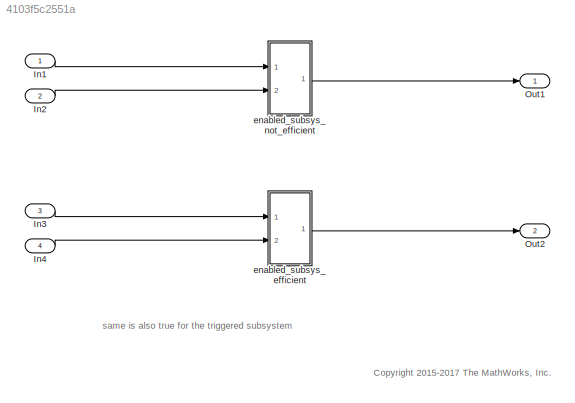
MODEL slx_4103f5c2551a
KIND model
CONFIG AbsTol = auto
CONFIG EnableMultiTasking = off
CONFIG FixedStep = auto
CONFIG MaxStep = auto
CONFIG MinStep = auto
CONFIG RelTol = 1e-3
CONFIG SampleTimeConstraint = Unconstrained
CONFIG Solver = FixedStepDiscrete
CONFIG SolverName = FixedStepDiscrete
CONFIG StartTime = 0.0
CONFIG StopTime = 10
BLOCK [Inport] In1
  IconDisplay = Port number
  OutDataTypeStr = fixdt(1,16,14)
  SampleTime = 1
BLOCK [Inport] In2
  IconDisplay = Port number
  OutDataTypeStr = boolean
  Port = 2
  SampleTime = 1
BLOCK [Inport] In3
  IconDisplay = Port number
  OutDataTypeStr = fixdt(1,16,14)
  Port = 3
  SampleTime = 1
BLOCK [Inport] In4
  IconDisplay = Port number
  OutDataTypeStr = boolean
  Port = 4
  SampleTime = 1
BLOCK [Outport] Out1
  IconDisplay = Port number
BLOCK [Outport] Out2
  IconDisplay = Port number
  Port = 2
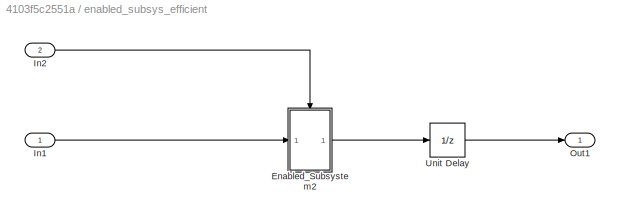
BLOCK [SubSystem] enabled_subsys_efficient
  Ports = [2, 1]
  RequestExecContextInheritance = off
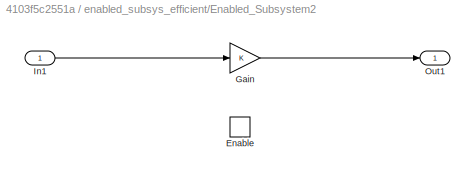
BLOCK [SubSystem] enabled_subsys_efficient/Enabled_Subsystem2
  AttributesFormatString = %<Description>
  Description = the unit delay will be absorbed by the enabled subsystem\nbut no bypass register and mux will be needed anymore
  Ports = [1, 1, 1]
  RequestExecContextInheritance = off
BLOCK [EnablePort] enabled_subsys_efficient/Enabled_Subsystem2/Enable
  Ports = []
BLOCK [Gain] enabled_subsys_efficient/Enabled_Subsystem2/Gain
  OutDataTypeStr = Inherit: Inherit via internal rule
  ParamDataTypeStr = Inherit: Inherit via internal rule
  SaturateOnIntegerOverflow = off
BLOCK [Inport] enabled_subsys_efficient/Enabled_Subsystem2/In1
  IconDisplay = Port number
BLOCK [Outport] enabled_subsys_efficient/Enabled_Subsystem2/Out1
  IconDisplay = Port number
  InitialOutput = 0
BLOCK [Inport] enabled_subsys_efficient/In1
  IconDisplay = Port number
BLOCK [Inport] enabled_subsys_efficient/In2
  IconDisplay = Port number
  Port = 2
BLOCK [Outport] enabled_subsys_efficient/Out1
  IconDisplay = Port number
BLOCK [UnitDelay] enabled_subsys_efficient/Unit Delay
  HasFrameUpgradeWarning = on
  SampleTime = -1
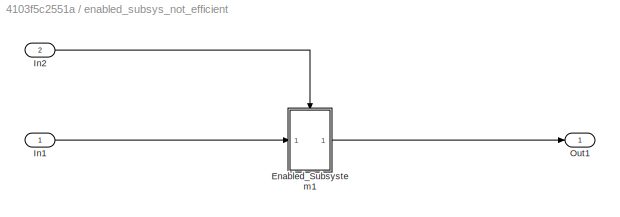
BLOCK [SubSystem] enabled_subsys_not_efficient
  Ports = [2, 1]
  RequestExecContextInheritance = off
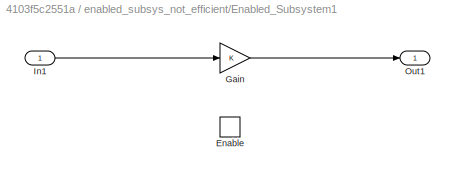
BLOCK [SubSystem] enabled_subsys_not_efficient/Enabled_Subsystem1
  AttributesFormatString = %<Description>
  Description = this will result in a bypass register and mux
  Ports = [1, 1, 1]
  RequestExecContextInheritance = off
BLOCK [EnablePort] enabled_subsys_not_efficient/Enabled_Subsystem1/Enable
  Ports = []
BLOCK [Gain] enabled_subsys_not_efficient/Enabled_Subsystem1/Gain
  OutDataTypeStr = Inherit: Inherit via internal rule
  ParamDataTypeStr = Inherit: Inherit via internal rule
  SaturateOnIntegerOverflow = off
BLOCK [Inport] enabled_subsys_not_efficient/Enabled_Subsystem1/In1
  IconDisplay = Port number
BLOCK [Outport] enabled_subsys_not_efficient/Enabled_Subsystem1/Out1
  IconDisplay = Port number
  InitialOutput = 0
BLOCK [Inport] enabled_subsys_not_efficient/In1
  IconDisplay = Port number
BLOCK [Inport] enabled_subsys_not_efficient/In2
  IconDisplay = Port number
  Port = 2
BLOCK [Outport] enabled_subsys_not_efficient/Out1
  IconDisplay = Port number
ANNOTATION (root): <copyright redacted>
ANNOTATION (root): same is also true for the triggered subsystem
LINE In1:1 -> enabled_subsys_not_efficient:1
LINE In2:1 -> enabled_subsys_not_efficient:2
LINE In3:1 -> enabled_subsys_efficient:1
LINE In4:1 -> enabled_subsys_efficient:2
LINE enabled_subsys_efficient/Enabled_Subsystem2/Gain:1 -> enabled_subsys_efficient/Enabled_Subsystem2/Out1:1
LINE enabled_subsys_efficient/Enabled_Subsystem2/In1:1 -> enabled_subsys_efficient/Enabled_Subsystem2/Gain:1
LINE enabled_subsys_efficient/Enabled_Subsystem2:1 -> enabled_subsys_efficient/Unit Delay:1
LINE enabled_subsys_efficient/In1:1 -> enabled_subsys_efficient/Enabled_Subsystem2:1
LINE enabled_subsys_efficient/In2:1 -> enabled_subsys_efficient/Enabled_Subsystem2:enable
LINE enabled_subsys_efficient/Unit Delay:1 -> enabled_subsys_efficient/Out1:1
LINE enabled_subsys_efficient:1 -> Out2:1
LINE enabled_subsys_not_efficient/Enabled_Subsystem1/Gain:1 -> enabled_subsys_not_efficient/Enabled_Subsystem1/Out1:1
LINE enabled_subsys_not_efficient/Enabled_Subsystem1/In1:1 -> enabled_subsys_not_efficient/Enabled_Subsystem1/Gain:1
LINE enabled_subsys_not_efficient/Enabled_Subsystem1:1 -> enabled_subsys_not_efficient/Out1:1
LINE enabled_subsys_not_efficient/In1:1 -> enabled_subsys_not_efficient/Enabled_Subsystem1:1
LINE enabled_subsys_not_efficient/In2:1 -> enabled_subsys_not_efficient/Enabled_Subsystem1:enable
LINE enabled_subsys_not_efficient:1 -> Out1:1
